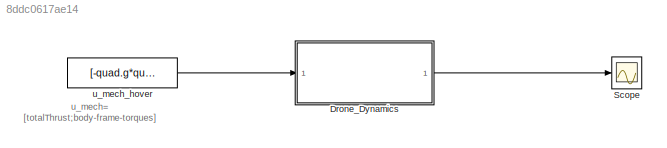
MODEL slx_8ddc0617ae14
KIND model
CONFIG AbsTol = auto
CONFIG FixedStep = auto
CONFIG InitFcn = % load parameters of the default quadrotor\ndisp('Quadrotor parameters loaded by InitFcn')\nparameters_estimationcontrol %load mdl_quadcopter as well!
CONFIG MaxStep = auto
CONFIG MinStep = auto
CONFIG RelTol = 1e-3
CONFIG SampleTimeConstraint = Unconstrained
CONFIG Solver = ode45
CONFIG SolverMode = Auto
CONFIG SolverName = ode45
CONFIG StartTime = 0.0
CONFIG StopTime = 10.0
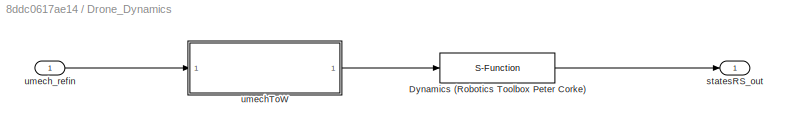
BLOCK [SubSystem] Drone_Dynamics
  Ports = [1, 1]
  RequestExecContextInheritance = off
BLOCK [S-Function] Drone_Dynamics/Dynamics (Robotics Toolbox Peter Corke)
  FunctionName = quadrotor_dynamics
  Parameters = quad
  Ports = [1, 1]
BLOCK [Outport] Drone_Dynamics/statesRS_out
  IconDisplay = Port number
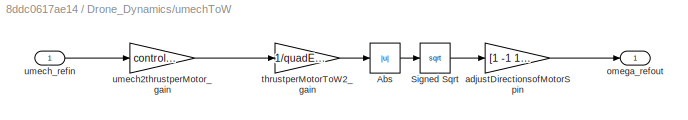
BLOCK [SubSystem] Drone_Dynamics/umechToW
  Ports = [1, 1]
  RequestExecContextInheritance = off
BLOCK [Abs] Drone_Dynamics/umechToW/Abs
  SaturateOnIntegerOverflow = off
BLOCK [Sqrt] Drone_Dynamics/umechToW/Signed Sqrt
BLOCK [Gain] Drone_Dynamics/umechToW/adjustDirectionsofMotorSpin
  Gain = [1 -1 1 -1]
  OutDataTypeStr = Inherit: Inherit via internal rule
  ParamDataTypeStr = Inherit: Inherit via internal rule
  SaturateOnIntegerOverflow = off
BLOCK [Outport] Drone_Dynamics/umechToW/omega_refout
  IconDisplay = Port number
BLOCK [Gain] Drone_Dynamics/umechToW/thrustperMotorToW2_gain
  Gain = 1/quadEDT.w2ToThrust_gain
  OutDataTypeStr = Inherit: Inherit via internal rule
  ParamDataTypeStr = Inherit: Inherit via internal rule
  SaturateOnIntegerOverflow = off
BLOCK [Gain] Drone_Dynamics/umechToW/umech2thrustperMotor_gain
  Gain = controlHelperParams.Q2Ts
  Multiplication = Matrix(K*u)
  OutDataTypeStr = Inherit: Inherit via internal rule
  ParamDataTypeStr = Inherit: Inherit via internal rule
  SaturateOnIntegerOverflow = off
BLOCK [Inport] Drone_Dynamics/umechToW/umech_refin
  IconDisplay = Port number
BLOCK [Inport] Drone_Dynamics/umech_refin
  IconDisplay = Port number
BLOCK [Scope] Scope
  Floating = off
  NumInputPorts = 1
  Ports = [1]
BLOCK [Constant] u_mech_hover
  Value = [-quad.g*quad.M,0,0,0]'
ANNOTATION (root): u_mech= [totalThrust;body-frame-torques]
LINE Drone_Dynamics/Dynamics (Robotics Toolbox Peter Corke):1 -> Drone_Dynamics/statesRS_out:1
LINE Drone_Dynamics/umechToW/Abs:1 -> Drone_Dynamics/umechToW/Signed Sqrt:1
LINE Drone_Dynamics/umechToW/Signed Sqrt:1 -> Drone_Dynamics/umechToW/adjustDirectionsofMotorSpin:1
LINE Drone_Dynamics/umechToW/adjustDirectionsofMotorSpin:1 -> Drone_Dynamics/umechToW/omega_refout:1
LINE Drone_Dynamics/umechToW/thrustperMotorToW2_gain:1 -> Drone_Dynamics/umechToW/Abs:1
LINE Drone_Dynamics/umechToW/umech2thrustperMotor_gain:1 -> Drone_Dynamics/umechToW/thrustperMotorToW2_gain:1
LINE Drone_Dynamics/umechToW/umech_refin:1 -> Drone_Dynamics/umechToW/umech2thrustperMotor_gain:1
LINE Drone_Dynamics/umechToW:1 -> Drone_Dynamics/Dynamics (Robotics Toolbox Peter Corke):1
LINE Drone_Dynamics/umech_refin:1 -> Drone_Dynamics/umechToW:1
LINE Drone_Dynamics:1 -> Scope:1
LINE u_mech_hover:1 -> Drone_Dynamics:1
